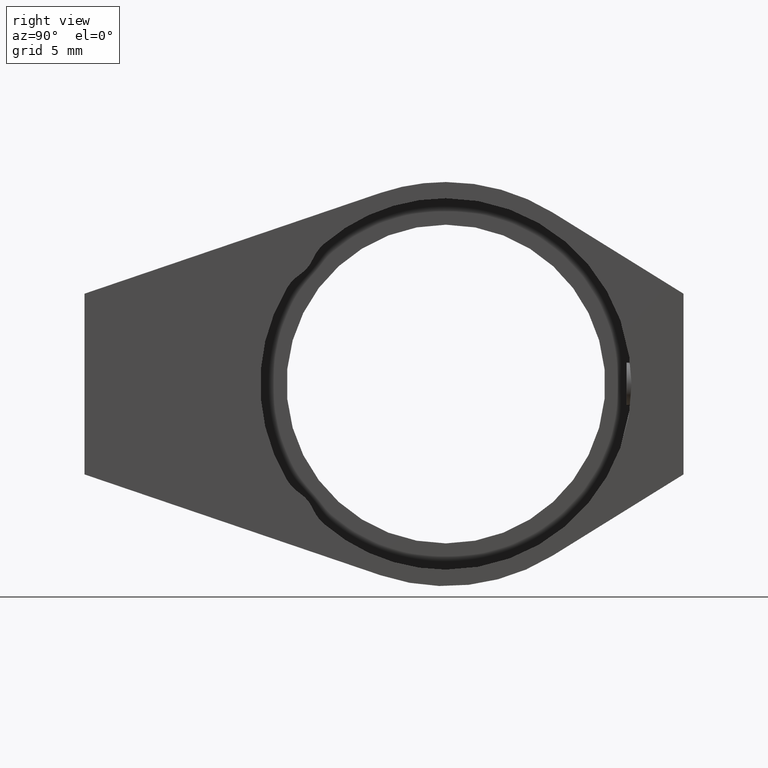
[diagram: clean part render]
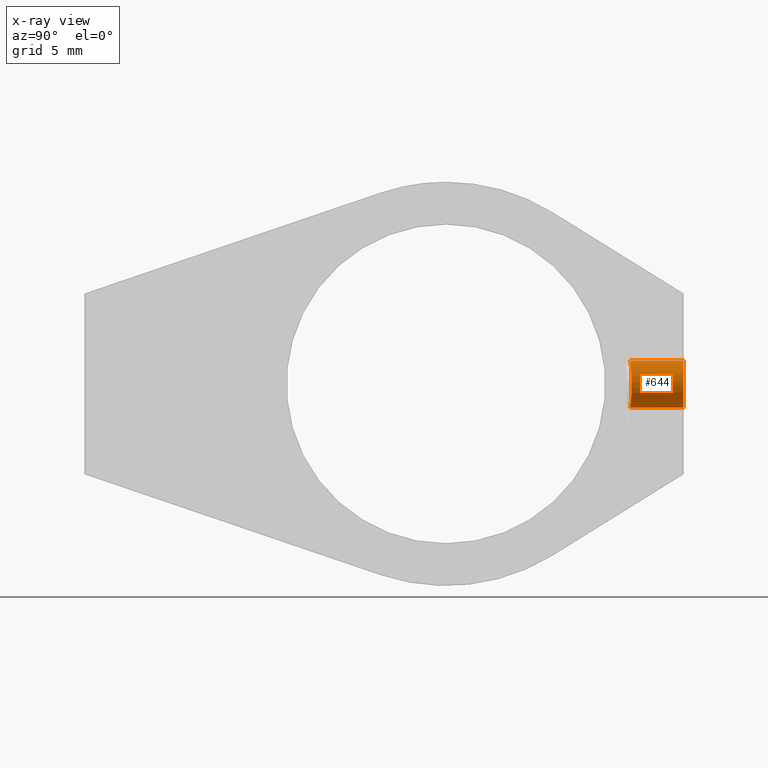
[diagram: x-ray — body ghosted, one internal face saturated and labeled with its STEP entity id]
A machine part, right view, then the same camera in x-ray: the body is ghosted and one INTERNAL B-rep face — a face not visible from any outside direction — is saturated and labeled: STEP entity #644.
In plain terms, the highlighted cylindrical surface (edge-blend (fillet) strip) has radius 1.65 mm, axis along (-0, 1, -0).
Its self-contained STEP definition (entity closure, byte-faithful):
#1 = CARTESIAN_POINT ( 'NONE',  ( -11.33260236446032287, 18.36185053568926762, 43.73927878422093585 ) ) ;
#8 = CARTESIAN_POINT ( 'NONE',  ( -9.899109747198430398, 18.46519179594714544, 42.31608545302361790 ) ) ;
#22 = LINE ( 'NONE', #1075, #619 ) ;
#31 = ORIENTED_EDGE ( 'NONE', *, *, #1340, .T. ) ;
#80 = CARTESIAN_POINT ( 'NONE',  ( -11.54903037869330085, 22.11520183104482129, 40.45000000000001705 ) ) ;
#117 = CARTESIAN_POINT ( 'NONE',  ( -11.54903037869330085, 22.11520183104482129, 42.10000000000000142 ) ) ;
#150 = VERTEX_POINT ( 'NONE', #80 ) ;
#197 = DIRECTION ( 'NONE',  ( -0.0000000000000000000, 1.000000000000000000, -0.0000000000000000000 ) ) ;
#221 = CARTESIAN_POINT ( 'NONE',  ( -11.54903037869330085, 18.36047123727967545, 43.74999999999999289 ) ) ;
#226 = DIRECTION ( 'NONE',  ( 0.0000000000000000000, 0.0000000000000000000, 1.000000000000000000 ) ) ;
#229 = CARTESIAN_POINT ( 'NONE',  ( -10.81691454996165724, 18.38077313379631050, 43.58263332758755126 ) ) ;
#237 = CARTESIAN_POINT ( 'NONE',  ( -11.43989335712610789, 18.36047123727967900, 43.75000000000000000 ) ) ;
#244 = CARTESIAN_POINT ( 'NONE',  ( -9.909749381650961197, 18.46383410196049013, 41.88341759203810710 ) ) ;
#276 = CARTESIAN_POINT ( 'NONE',  ( -10.30523261409454960, 18.41986091975951823, 41.01036032940764642 ) ) ;
#285 = CARTESIAN_POINT ( 'NONE',  ( -11.54903037869330085, 18.36047123727967545, 40.45000000000000995 ) ) ;
#358 = CARTESIAN_POINT ( 'NONE',  ( -11.44128869003516336, 18.36047123727967190, 40.45000000000001705 ) ) ;
#383 = EDGE_LOOP ( 'NONE', ( #602, #1369, #31, #497 ) ) ;
#454 = CARTESIAN_POINT ( 'NONE',  ( -10.72217886153318389, 18.38654283191737093, 43.53193517797777190 ) ) ;
#472 = CARTESIAN_POINT ( 'NONE',  ( -10.45914942591014984, 18.40604343679571997, 40.85641365409959036 ) ) ;
#478 = CARTESIAN_POINT ( 'NONE',  ( -10.06589901774066398, 18.44509015032910071, 41.36888804882885040 ) ) ;
#486 = CARTESIAN_POINT ( 'NONE',  ( -10.81753290168542847, 18.38073826624507490, 40.61706317472603445 ) ) ;
#497 = ORIENTED_EDGE ( 'NONE', *, *, #879, .T. ) ;
#518 = AXIS2_PLACEMENT_3D ( 'NONE', #117, #915, #226 ) ;
#559 = VERTEX_POINT ( 'NONE', #1144 ) ;
#566 = AXIS2_PLACEMENT_3D ( 'NONE', #751, #1231, #758 ) ;
#570 = EDGE_CURVE ( 'NONE', #631, #559, #1392, .T. ) ;
#576 = CARTESIAN_POINT ( 'NONE',  ( -10.45808873958595342, 18.40613796400805313, 43.34254103017283910 ) ) ;
#602 = ORIENTED_EDGE ( 'NONE', *, *, #784, .F. ) ;
#604 = CARTESIAN_POINT ( 'NONE',  ( -9.951934231971559797, 18.45860162006422200, 41.67170801451663920 ) ) ;
#619 = VECTOR ( 'NONE', #837, 1000.000000000000000 ) ;
#631 = VERTEX_POINT ( 'NONE', #1188 ) ;
#644 = ADVANCED_FACE ( 'NONE', ( #771 ), #1204, .F. ) ;
#686 = CARTESIAN_POINT ( 'NONE',  ( -10.54288971628803750, 18.39920440968105808, 43.41217481793201216 ) ) ;
#737 = CARTESIAN_POINT ( 'NONE',  ( -10.11754314545301270, 18.43924229381086377, 41.27241934944163404 ) ) ;
#751 = CARTESIAN_POINT ( 'NONE',  ( -11.54903037869330085, 22.11520183104482129, 42.10000000000000142 ) ) ;
#758 = DIRECTION ( 'NONE',  ( 0.0000000000000000000, 0.0000000000000000000, 1.000000000000000000 ) ) ;
#764 = LINE ( 'NONE', #1224, #1166 ) ;
#771 = FACE_OUTER_BOUND ( 'NONE', #383, .T. ) ;
#784 = EDGE_CURVE ( 'NONE', #559, #150, #764, .T. ) ;
#794 = CARTESIAN_POINT ( 'NONE',  ( -11.01669565972309606, 18.37102777434440171, 43.66550787852749238 ) ) ;
#816 = CARTESIAN_POINT ( 'NONE',  ( -11.54903037869330085, 22.11520183104482129, 43.74999999999998579 ) ) ;
#817 = CARTESIAN_POINT ( 'NONE',  ( -9.983135606046618094, 18.45476997643145722, 41.56879676207283580 ) ) ;
#837 = DIRECTION ( 'NONE',  ( -0.0000000000000000000, 1.000000000000000000, -0.0000000000000000000 ) ) ;
#879 = EDGE_CURVE ( 'NONE', #961, #150, #1358, .T. ) ;
#915 = DIRECTION ( 'NONE',  ( -0.0000000000000000000, 1.000000000000000000, -0.0000000000000000000 ) ) ;
#939 = CARTESIAN_POINT ( 'NONE',  ( -11.33184066631439890, 18.36186075234876469, 40.46080014636911670 ) ) ;
#961 = VERTEX_POINT ( 'NONE', #816 ) ;
#968 = CARTESIAN_POINT ( 'NONE',  ( -10.23696364370730549, 18.42665806752710367, 41.09375633415570661 ) ) ;
#1025 = CARTESIAN_POINT ( 'NONE',  ( -11.12155462475436885, 18.36709771992273232, 43.69729161318028332 ) ) ;
#1031 = CARTESIAN_POINT ( 'NONE',  ( -10.23003685451535105, 18.42661281217939617, 43.11439813169267410 ) ) ;
#1075 = CARTESIAN_POINT ( 'NONE',  ( -11.54903037869330085, 22.11520183104482129, 43.74999999999999289 ) ) ;
#1144 = CARTESIAN_POINT ( 'NONE',  ( -11.54903037869330085, 18.36047123727967545, 40.45000000000000995 ) ) ;
#1166 = VECTOR ( 'NONE', #197, 1000.000000000000000 ) ;
#1167 = CARTESIAN_POINT ( 'NONE',  ( -11.01730478375805156, 18.37100279439501094, 40.53428671899571611 ) ) ;
#1175 = CARTESIAN_POINT ( 'NONE',  ( -11.12017000968801206, 18.36714095495669596, 40.50305719726615905 ) ) ;
#1188 = CARTESIAN_POINT ( 'NONE',  ( -11.54903037869330085, 18.36047123727967545, 43.74999999999999289 ) ) ;
#1204 = CYLINDRICAL_SURFACE ( 'NONE', #566, 1.649999999999991696 ) ;
#1224 = CARTESIAN_POINT ( 'NONE',  ( -11.54903037869330085, 22.11520183104482129, 40.45000000000000995 ) ) ;
#1231 = DIRECTION ( 'NONE',  ( -0.0000000000000000000, 1.000000000000000000, -0.0000000000000000000 ) ) ;
#1262 = CARTESIAN_POINT ( 'NONE',  ( -10.10714279806841098, 18.44026834927473146, 42.93045026213537341 ) ) ;
#1269 = CARTESIAN_POINT ( 'NONE',  ( -9.898990861862206003, 18.46520682742543684, 41.99286762297975883 ) ) ;
#1276 = CARTESIAN_POINT ( 'NONE',  ( -10.54239370734028469, 18.39924516928685350, 40.78823533721174499 ) ) ;
#1340 = EDGE_CURVE ( 'NONE', #631, #961, #22, .T. ) ;
#1358 = CIRCLE ( 'NONE', #518, 1.649999999999984812 ) ;
#1369 = ORIENTED_EDGE ( 'NONE', *, *, #570, .F. ) ;
#1374 = CARTESIAN_POINT ( 'NONE',  ( -9.942526593251958644, 18.45951754409741596, 42.53339707013733317 ) ) ;
#1392 = B_SPLINE_CURVE_WITH_KNOTS ( 'NONE', 3,
 ( #221, #237, #1, #1025, #794, #229, #454, #686, #576, #1031, #1262, #1374, #8, #1269, #244, #604, #817, #478, #737, #968, #276, #472, #1276, #1422, #486, #1167, #1175, #939, #358, #285 ),
 .UNSPECIFIED., .F., .F.,
 ( 4, 2, 2, 2, 2, 2, 2, 2, 2, 2, 2, 2, 2, 2, 4 ),
 ( 0.0000000000000000000, 0.0003227384752863653714, 0.0006454769505727307429, 0.0009682154258590961685, 0.001290953901145461486, 0.001936430851718191470, 0.002581907802290921670, 0.002904646277577276579, 0.003227384752863630621, 0.003550123228149985096, 0.003872861703436339138, 0.004195600178722693613, 0.004518338654009048522, 0.004841077129295402563, 0.005163815604581757472 ),
 .UNSPECIFIED. ) ;
#1422 = CARTESIAN_POINT ( 'NONE',  ( -10.72100869889292873, 18.38661979221831189, 40.66876835682226243 ) ) ;